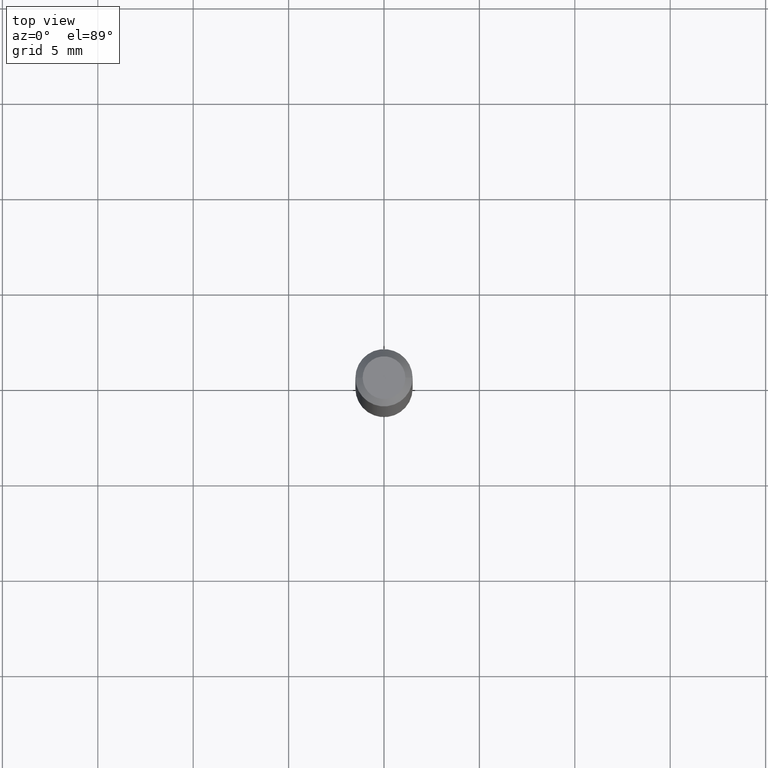
[diagram: clean part render]
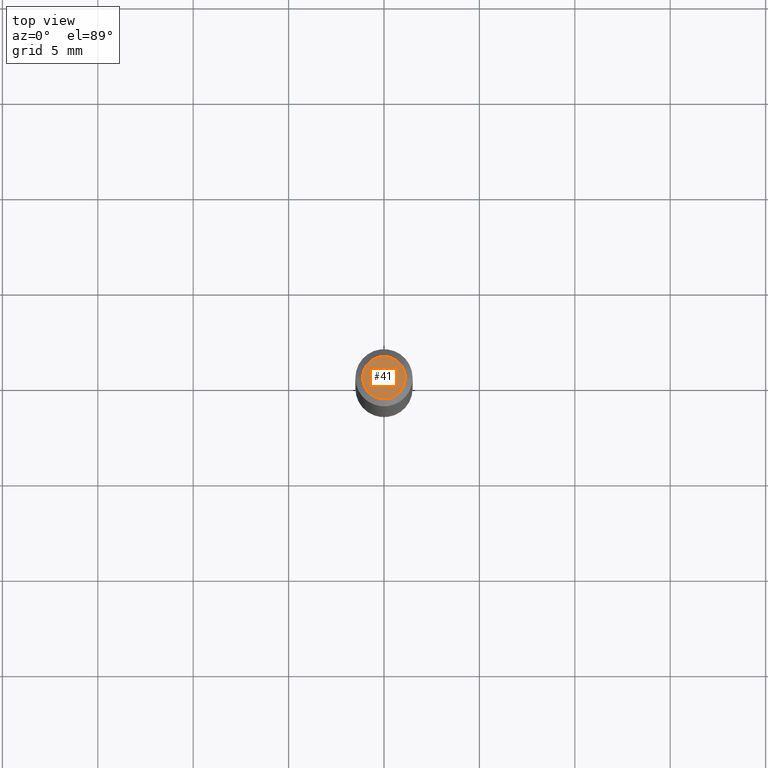
[diagram: same view with one face highlighted and labeled with its STEP entity id]
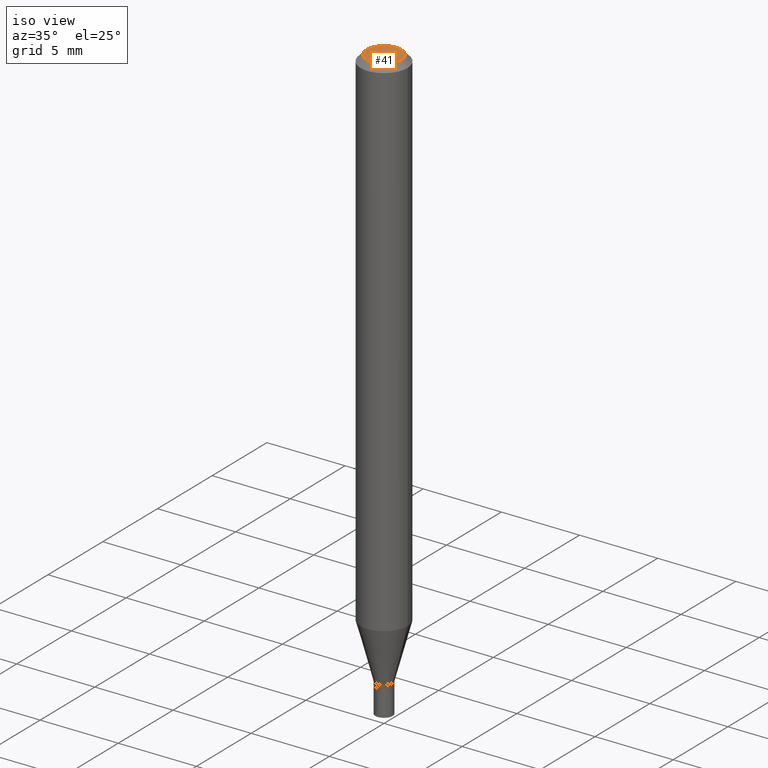
[diagram: same view with one face highlighted and labeled with its STEP entity id]
A machine part, top view. The second image highlights one B-rep face of the part: STEP entity #41.
A second angle (iso view) of the same face is appended — the face is thin or edge-on in the first view.
In plain terms, the highlighted planar face has unit normal (0, -0, -1).
Its self-contained STEP definition (entity closure, byte-faithful):
#11 = DIRECTION ( 'NONE',  ( -2.445468806185136597E-29, 3.491481338843145583E-15, 1.000000000000000000 ) ) ;
#18 = DIRECTION ( 'NONE',  ( 2.438088387897960049E-29, -3.491481338843145188E-15, -1.000000000000000000 ) ) ;
#41 = ADVANCED_FACE ( 'NONE', ( #153 ), #332, .F. ) ;
#62 = CIRCLE ( 'NONE', #352, 0.04404999999999999888 ) ;
#70 = EDGE_LOOP ( 'NONE', ( #390, #202 ) ) ;
#91 = DIRECTION ( 'NONE',  ( 1.000000000000000000, -6.982962677686265922E-15, 4.888540261209747396E-29 ) ) ;
#149 = CARTESIAN_POINT ( 'NONE',  ( 0.04404999999999999888, -3.798447818264464516E-16, -2.618358350975129121E-16 ) ) ;
#153 = FACE_OUTER_BOUND ( 'NONE', #70, .T. ) ;
#202 = ORIENTED_EDGE ( 'NONE', *, *, #453, .T. ) ;
#248 = CIRCLE ( 'NONE', #405, 0.04404999999999999888 ) ;
#252 = CARTESIAN_POINT ( 'NONE',  ( -0.04404999999999999888, 3.337856159934029701E-16, -2.618358350975175960E-16 ) ) ;
#266 = DIRECTION ( 'NONE',  ( 1.000000000000000000, -6.982962677686265922E-15, 4.888540261209747396E-29 ) ) ;
#272 = VERTEX_POINT ( 'NONE', #149 ) ;
#302 = CARTESIAN_POINT ( 'NONE',  ( 3.075995059520799729E-16, 0.04404999999999999888, -2.847176705247982421E-16 ) ) ;
#332 = PLANE ( 'NONE',  #408 ) ;
#352 = AXIS2_PLACEMENT_3D ( 'NONE', #466, #419, #91 ) ;
#368 = EDGE_CURVE ( 'NONE', #372, #272, #62, .T. ) ;
#372 = VERTEX_POINT ( 'NONE', #252 ) ;
#390 = ORIENTED_EDGE ( 'NONE', *, *, #368, .T. ) ;
#405 = AXIS2_PLACEMENT_3D ( 'NONE', #433, #11, #266 ) ;
#408 = AXIS2_PLACEMENT_3D ( 'NONE', #302, #18, #440 ) ;
#419 = DIRECTION ( 'NONE',  ( -2.445468806185136597E-29, 3.491481338843145583E-15, 1.000000000000000000 ) ) ;
#433 = CARTESIAN_POINT ( 'NONE',  ( 6.403113670724090360E-45, -9.141949320833859190E-31, -2.618358350975153280E-16 ) ) ;
#440 = DIRECTION ( 'NONE',  ( -1.000000000000000000, 6.982962677686265922E-15, -4.876176775795935793E-29 ) ) ;
#453 = EDGE_CURVE ( 'NONE', #272, #372, #248, .T. ) ;
#466 = CARTESIAN_POINT ( 'NONE',  ( 6.403113670724090360E-45, -9.141949320833859190E-31, -2.618358350975153280E-16 ) ) ;